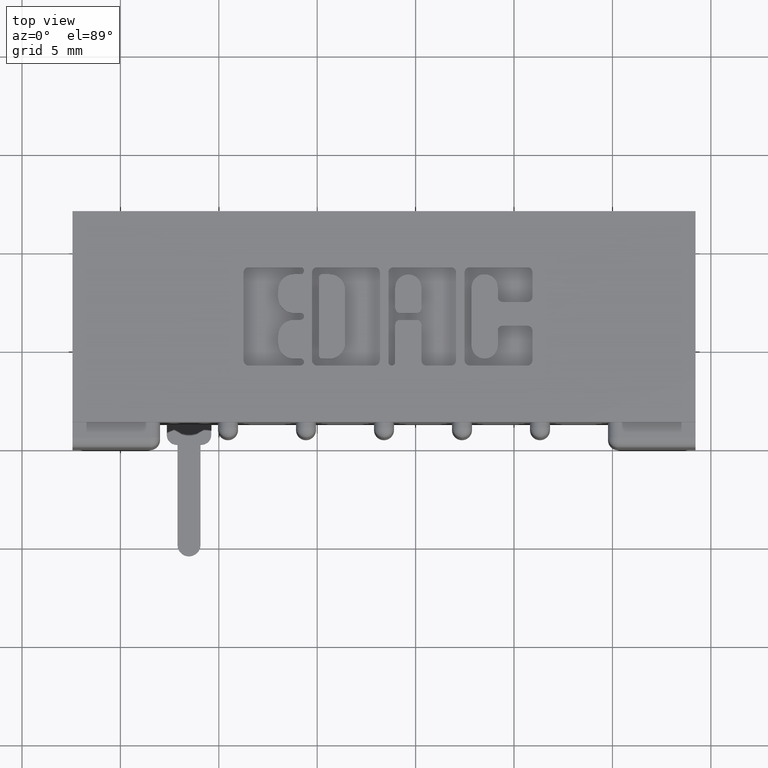
[diagram: clean part render]
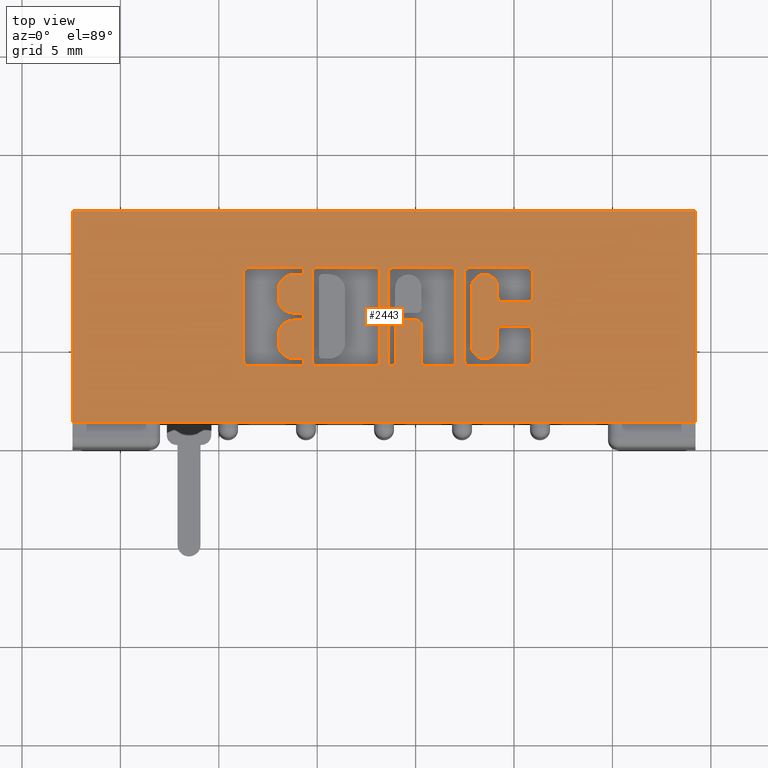
[diagram: same view with one face highlighted and labeled with its STEP entity id]
A machine part, top view. The second image highlights one B-rep face of the part: STEP entity #2443.
In plain terms, the highlighted planar face has unit normal (0, 0, -1).
Its self-contained STEP definition (entity closure, byte-faithful):
#38 = VECTOR ( 'NONE', #5203, 39.37007874015748100 ) ;
#40 = ORIENTED_EDGE ( 'NONE', *, *, #5771, .F. ) ;
#48 = LINE ( 'NONE', #5258, #38 ) ;
#55 = CIRCLE ( 'NONE', #6924, 0.009815670203803203800 ) ;
#60 = ORIENTED_EDGE ( 'NONE', *, *, #5436, .F. ) ;
#67 = CARTESIAN_POINT ( 'NONE',  ( 0.7406370600051098700, 0.1775852362473085400, 0.0000000000000000000 ) ) ;
#75 = VECTOR ( 'NONE', #808, 39.37007874015748100 ) ;
#86 = EDGE_LOOP ( 'NONE', ( #807, #748, #302, #671, #717, #8188, #40, #60 ) ) ;
#89 = VECTOR ( 'NONE', #2496, 39.37007874015748100 ) ;
#94 = ORIENTED_EDGE ( 'NONE', *, *, #1226, .T. ) ;
#98 = LINE ( 'NONE', #2585, #75 ) ;
#109 = ORIENTED_EDGE ( 'NONE', *, *, #1317, .F. ) ;
#112 = ORIENTED_EDGE ( 'NONE', *, *, #6377, .T. ) ;
#116 = LINE ( 'NONE', #8558, #89 ) ;
#118 = DIRECTION ( 'NONE',  ( 1.000000000000000000, 0.0000000000000000000, 0.0000000000000000000 ) ) ;
#125 = CIRCLE ( 'NONE', #6938, 0.009815670203806891800 ) ;
#128 = EDGE_CURVE ( 'NONE', #4295, #4230, #1099, .T. ) ;
#132 = VECTOR ( 'NONE', #4491, 39.37007874015748100 ) ;
#134 = EDGE_LOOP ( 'NONE', ( #7919, #7979, #7933, #7985, #8068, #8058, #8090, #8302, #8335, #8123, #8128, #8307, #8179, #8246, #8243, #8267, #8375, #8436, #8392, #8668 ) ) ;
#144 = LINE ( 'NONE', #4650, #132 ) ;
#177 = VECTOR ( 'NONE', #8945, 39.37007874015748100 ) ;
#188 = CIRCLE ( 'NONE', #6937, 0.006870969142657995000 ) ;
#193 = LINE ( 'NONE', #8974, #177 ) ;
#196 = ORIENTED_EDGE ( 'NONE', *, *, #1245, .F. ) ;
#200 = VERTEX_POINT ( 'NONE', #1049 ) ;
#210 = CIRCLE ( 'NONE', #6595, 0.006870969142663458500 ) ;
#218 = EDGE_CURVE ( 'NONE', #1334, #5589, #224, .T. ) ;
#224 = CIRCLE ( 'NONE', #8408, 0.03141014465221592800 ) ;
#230 = EDGE_CURVE ( 'NONE', #6429, #4139, #98, .T. ) ;
#254 = ORIENTED_EDGE ( 'NONE', *, *, #5502, .F. ) ;
#257 = ORIENTED_EDGE ( 'NONE', *, *, #1299, .T. ) ;
#263 = VERTEX_POINT ( 'NONE', #7579 ) ;
#267 = VERTEX_POINT ( 'NONE', #9097 ) ;
#292 = ORIENTED_EDGE ( 'NONE', *, *, #5563, .T. ) ;
#302 = ORIENTED_EDGE ( 'NONE', *, *, #5166, .F. ) ;
#315 = EDGE_CURVE ( 'NONE', #5075, #2947, #2889, .T. ) ;
#319 = CARTESIAN_POINT ( 'NONE',  ( 0.7541336065353102500, 0.2620000000000202700, 0.0000000000000000000 ) ) ;
#321 = ORIENTED_EDGE ( 'NONE', *, *, #5548, .T. ) ;
#345 = EDGE_CURVE ( 'NONE', #4890, #3096, #1686, .T. ) ;
#364 = VECTOR ( 'NONE', #4811, 39.37007874015748100 ) ;
#386 = ORIENTED_EDGE ( 'NONE', *, *, #5594, .T. ) ;
#392 = VECTOR ( 'NONE', #6287, 39.37007874015748100 ) ;
#405 = LINE ( 'NONE', #5845, #364 ) ;
#410 = ORIENTED_EDGE ( 'NONE', *, *, #5211, .T. ) ;
#430 = ORIENTED_EDGE ( 'NONE', *, *, #5178, .F. ) ;
#436 = EDGE_CURVE ( 'NONE', #754, #4784, #1018, .T. ) ;
#452 = ORIENTED_EDGE ( 'NONE', *, *, #5198, .T. ) ;
#460 = VERTEX_POINT ( 'NONE', #8485 ) ;
#472 = LINE ( 'NONE', #6136, #392 ) ;
#500 = LINE ( 'NONE', #8812, #519 ) ;
#502 = EDGE_CURVE ( 'NONE', #4230, #851, #939, .T. ) ;
#516 = ORIENTED_EDGE ( 'NONE', *, *, #4866, .T. ) ;
#519 = VECTOR ( 'NONE', #8828, 39.37007874015748100 ) ;
#527 = ORIENTED_EDGE ( 'NONE', *, *, #1109, .F. ) ;
#529 = VECTOR ( 'NONE', #5625, 39.37007874015748100 ) ;
#534 = DIRECTION ( 'NONE',  ( -0.0000000000000000000, 1.000000000000000000, -0.0000000000000000000 ) ) ;
#542 = VERTEX_POINT ( 'NONE', #2942 ) ;
#618 = DIRECTION ( 'NONE',  ( -0.0000000000000000000, 0.0000000000000000000, 1.000000000000000000 ) ) ;
#631 = VECTOR ( 'NONE', #534, 39.37007874015748100 ) ;
#638 = CIRCLE ( 'NONE', #6951, 0.009815670203841039800 ) ;
#643 = ORIENTED_EDGE ( 'NONE', *, *, #4531, .T. ) ;
#671 = ORIENTED_EDGE ( 'NONE', *, *, #502, .F. ) ;
#674 = CIRCLE ( 'NONE', #6954, 0.009815670203822599700 ) ;
#682 = LINE ( 'NONE', #8286, #631 ) ;
#699 = VERTEX_POINT ( 'NONE', #7765 ) ;
#717 = ORIENTED_EDGE ( 'NONE', *, *, #128, .F. ) ;
#745 = LINE ( 'NONE', #6282, #767 ) ;
#748 = ORIENTED_EDGE ( 'NONE', *, *, #4816, .F. ) ;
#754 = VERTEX_POINT ( 'NONE', #5941 ) ;
#765 = CARTESIAN_POINT ( 'NONE',  ( 1.148478156973166100, 0.3007718973050451700, 0.0000000000000000000 ) ) ;
#767 = VECTOR ( 'NONE', #6696, 39.37007874015748100 ) ;
#784 = VECTOR ( 'NONE', #5910, 39.37007874015748100 ) ;
#802 = ORIENTED_EDGE ( 'NONE', *, *, #5135, .T. ) ;
#807 = ORIENTED_EDGE ( 'NONE', *, *, #4777, .F. ) ;
#808 = DIRECTION ( 'NONE',  ( 0.0000000000000000000, 1.000000000000000000, -0.0000000000000000000 ) ) ;
#812 = CIRCLE ( 'NONE', #6978, 0.009815670203805798900 ) ;
#817 = ORIENTED_EDGE ( 'NONE', *, *, #5155, .F. ) ;
#831 = ORIENTED_EDGE ( 'NONE', *, *, #4776, .F. ) ;
#851 = VERTEX_POINT ( 'NONE', #8990 ) ;
#852 = ORIENTED_EDGE ( 'NONE', *, *, #4679, .F. ) ;
#861 = ORIENTED_EDGE ( 'NONE', *, *, #1168, .F. ) ;
#883 = LINE ( 'NONE', #5977, #784 ) ;
#885 = VECTOR ( 'NONE', #5010, 39.37007874015748100 ) ;
#894 = LINE ( 'NONE', #7299, #885 ) ;
#897 = ORIENTED_EDGE ( 'NONE', *, *, #4576, .F. ) ;
#904 = ORIENTED_EDGE ( 'NONE', *, *, #4634, .F. ) ;
#910 = CARTESIAN_POINT ( 'NONE',  ( 0.7406370600050843400, 0.2237188862052004700, 0.0000000000000000000 ) ) ;
#918 = CIRCLE ( 'NONE', #6980, 0.006870969142662229500 ) ;
#939 = LINE ( 'NONE', #6470, #529 ) ;
#953 = VECTOR ( 'NONE', #5873, 39.37007874015748100 ) ;
#966 = CIRCLE ( 'NONE', #6992, 0.03141014465218178200 ) ;
#971 = CARTESIAN_POINT ( 'NONE',  ( 0.7092269153529097100, 0.0000000000000000000, 0.0000000000000000000 ) ) ;
#974 = LINE ( 'NONE', #4792, #953 ) ;
#979 = ORIENTED_EDGE ( 'NONE', *, *, #4852, .F. ) ;
#992 = ORIENTED_EDGE ( 'NONE', *, *, #4760, .F. ) ;
#993 = CARTESIAN_POINT ( 'NONE',  ( 0.7092269153529097100, 0.3002811137948582800, 0.0000000000000000000 ) ) ;
#999 = ORIENTED_EDGE ( 'NONE', *, *, #7491, .F. ) ;
#1002 = CARTESIAN_POINT ( 'NONE',  ( 0.7541336065353515500, 0.3601567020380326800, 0.0000000000000000000 ) ) ;
#1003 = EDGE_CURVE ( 'NONE', #7845, #3047, #3624, .T. ) ;
#1014 = ORIENTED_EDGE ( 'NONE', *, *, #5304, .F. ) ;
#1018 = LINE ( 'NONE', #8515, #1069 ) ;
#1048 = ORIENTED_EDGE ( 'NONE', *, *, #4540, .F. ) ;
#1049 = CARTESIAN_POINT ( 'NONE',  ( 0.9124112885716693100, 0.3503410318342100000, 0.0000000000000000000 ) ) ;
#1054 = LINE ( 'NONE', #6115, #8670 ) ;
#1069 = VECTOR ( 'NONE', #8443, 39.37007874015748100 ) ;
#1099 = CIRCLE ( 'NONE', #8451, 0.009815670203806754800 ) ;
#1105 = ORIENTED_EDGE ( 'NONE', *, *, #8032, .F. ) ;
#1109 = EDGE_CURVE ( 'NONE', #3758, #1208, #8739, .T. ) ;
#1112 = CARTESIAN_POINT ( 'NONE',  ( 0.7406370600051257500, 0.3150046191005197400, 0.0000000000000000000 ) ) ;
#1128 = EDGE_CURVE ( 'NONE', #7845, #3979, #1054, .T. ) ;
#1130 = EDGE_CURVE ( 'NONE', #3115, #4295, #8682, .T. ) ;
#1147 = CARTESIAN_POINT ( 'NONE',  ( 0.7610045756779737500, 0.2620000000000202700, 0.0000000000000000000 ) ) ;
#1154 = CARTESIAN_POINT ( 'NONE',  ( 0.9958444853039849500, 0.1736589681657878000, 0.0000000000000000000 ) ) ;
#1167 = CARTESIAN_POINT ( 'NONE',  ( 0.7610045756779980600, 0.1707142671046479000, 0.0000000000000000000 ) ) ;
#1168 = EDGE_CURVE ( 'NONE', #8438, #263, #8607, .T. ) ;
#1185 = EDGE_CURVE ( 'NONE', #3096, #3047, #8564, .T. ) ;
#1199 = DIRECTION ( 'NONE',  ( 1.000000000000000000, 0.0000000000000000000, 0.0000000000000000000 ) ) ;
#1208 = VERTEX_POINT ( 'NONE', #3523 ) ;
#1226 = EDGE_CURVE ( 'NONE', #6265, #6999, #8455, .T. ) ;
#1236 = CARTESIAN_POINT ( 'NONE',  ( 0.6400264404161156700, 0.1736589681657899100, 0.0000000000000000000 ) ) ;
#1245 = EDGE_CURVE ( 'NONE', #6265, #3647, #8371, .T. ) ;
#1281 = CARTESIAN_POINT ( 'NONE',  ( 0.7541336065353515500, 0.3532857328953861700, 0.0000000000000000000 ) ) ;
#1288 = DIRECTION ( 'NONE',  ( 0.0000000000000000000, -1.000000000000000000, 0.0000000000000000000 ) ) ;
#1291 = VERTEX_POINT ( 'NONE', #2808 ) ;
#1299 = EDGE_CURVE ( 'NONE', #8426, #267, #8430, .T. ) ;
#1309 = DIRECTION ( 'NONE',  ( 1.000000000000000000, 0.0000000000000000000, 0.0000000000000000000 ) ) ;
#1317 = EDGE_CURVE ( 'NONE', #8426, #6999, #8409, .T. ) ;
#1332 = DIRECTION ( 'NONE',  ( -0.0000000000000000000, 0.0000000000000000000, 1.000000000000000000 ) ) ;
#1334 = VERTEX_POINT ( 'NONE', #3092 ) ;
#1346 = DIRECTION ( 'NONE',  ( -0.0000000000000000000, 0.0000000000000000000, 1.000000000000000000 ) ) ;
#1376 = CARTESIAN_POINT ( 'NONE',  ( 0.9860288151001884700, 0.2551290308573497300, 0.0000000000000000000 ) ) ;
#1429 = EDGE_CURVE ( 'NONE', #2947, #3399, #8232, .T. ) ;
#1432 = CARTESIAN_POINT ( 'NONE',  ( 0.7541336065353102500, 0.2688709691426837700, 0.0000000000000000000 ) ) ;
#1455 = CARTESIAN_POINT ( 'NONE',  ( 0.7867707099630104600, 0.3601567020380510000, 0.0000000000000000000 ) ) ;
#1515 = CIRCLE ( 'NONE', #6606, 0.009815670203840902800 ) ;
#1517 = VERTEX_POINT ( 'NONE', #2994 ) ;
#1542 = ORIENTED_EDGE ( 'NONE', *, *, #8373, .F. ) ;
#1549 = VERTEX_POINT ( 'NONE', #4907 ) ;
#1562 = DIRECTION ( 'NONE',  ( 1.000000000000000000, 0.0000000000000000000, 0.0000000000000000000 ) ) ;
#1565 = DIRECTION ( 'NONE',  ( -0.0000000000000000000, 0.0000000000000000000, 1.000000000000000000 ) ) ;
#1625 = DIRECTION ( 'NONE',  ( -0.0000000000000000000, 0.0000000000000000000, 1.000000000000000000 ) ) ;
#1642 = CARTESIAN_POINT ( 'NONE',  ( 1.148478156973179200, 0.2038421540424529300, 0.0000000000000000000 ) ) ;
#1686 = CIRCLE ( 'NONE', #8396, 0.009815670203788042300 ) ;
#1710 = DIRECTION ( 'NONE',  ( 1.000000000000000000, 0.0000000000000000000, 0.0000000000000000000 ) ) ;
#1718 = DIRECTION ( 'NONE',  ( -1.000000000000000000, -3.427012734660361200E-014, 0.0000000000000000000 ) ) ;
#1768 = DIRECTION ( 'NONE',  ( 0.0000000000000000000, 1.000000000000000000, -0.0000000000000000000 ) ) ;
#1797 = CARTESIAN_POINT ( 'NONE',  ( 1.148478156973179200, 0.2335345564089686100, 0.0000000000000000000 ) ) ;
#1801 = DIRECTION ( 'NONE',  ( 1.000000000000000000, 0.0000000000000000000, 0.0000000000000000000 ) ) ;
#1816 = DIRECTION ( 'NONE',  ( -0.0000000000000000000, 0.0000000000000000000, 1.000000000000000000 ) ) ;
#1832 = CARTESIAN_POINT ( 'NONE',  ( 0.7541336064153890700, 0.2551290308573567800, 0.0000000000000000000 ) ) ;
#1835 = CARTESIAN_POINT ( 'NONE',  ( 1.055229290037011900, 0.3503410318342102800, 0.0000000000000000000 ) ) ;
#1872 = DIRECTION ( 'NONE',  ( 0.0000000000000000000, -1.000000000000000000, 0.0000000000000000000 ) ) ;
#1911 = DIRECTION ( 'NONE',  ( 1.000000000000000000, 0.0000000000000000000, 0.0000000000000000000 ) ) ;
#1936 = CIRCLE ( 'NONE', #6875, 0.009815670203840902800 ) ;
#1956 = VECTOR ( 'NONE', #8182, 39.37007874015748100 ) ;
#1994 = LINE ( 'NONE', #8189, #1956 ) ;
#2031 = VERTEX_POINT ( 'NONE', #2342 ) ;
#2083 = DIRECTION ( 'NONE',  ( -0.0000000000000000000, 0.0000000000000000000, 1.000000000000000000 ) ) ;
#2084 = DIRECTION ( 'NONE',  ( -0.0000000000000000000, 0.0000000000000000000, 1.000000000000000000 ) ) ;
#2154 = VECTOR ( 'NONE', #6464, 39.37007874015748100 ) ;
#2169 = VERTEX_POINT ( 'NONE', #6633 ) ;
#2171 = CARTESIAN_POINT ( 'NONE',  ( 0.9364596805709872700, 0.1707142671046479000, 0.0000000000000000000 ) ) ;
#2172 = DIRECTION ( 'NONE',  ( 1.000000000000000000, 0.0000000000000000000, 0.0000000000000000000 ) ) ;
#2176 = VECTOR ( 'NONE', #7712, 39.37007874015748100 ) ;
#2184 = LINE ( 'NONE', #7628, #2176 ) ;
#2195 = CARTESIAN_POINT ( 'NONE',  ( 1.055229290037010800, 0.1736589681657807500, 0.0000000000000000000 ) ) ;
#2196 = CARTESIAN_POINT ( 'NONE',  ( 1.207862961706132300, 0.3503410318342108900, 0.0000000000000000000 ) ) ;
#2212 = CIRCLE ( 'NONE', #6613, 0.009815670203806754800 ) ;
#2249 = LINE ( 'NONE', #5831, #2154 ) ;
#2342 = CARTESIAN_POINT ( 'NONE',  ( 1.207862961706168700, 0.3601567020380510000, 0.0000000000000000000 ) ) ;
#2390 = VECTOR ( 'NONE', #9065, 39.37007874015748100 ) ;
#2420 = CARTESIAN_POINT ( 'NONE',  ( 1.158293827176977600, 0.3007718973050451700, 0.0000000000000000000 ) ) ;
#2443 = ADVANCED_FACE ( 'NONE', ( #5150, #4834, #4827, #5026, #4929 ), #8325, .F. ) ;
#2445 = EDGE_CURVE ( 'NONE', #3399, #4272, #1994, .T. ) ;
#2451 = VECTOR ( 'NONE', #5161, 39.37007874015748100 ) ;
#2483 = CARTESIAN_POINT ( 'NONE',  ( 1.005660155507788200, 0.1736589681657878000, 0.0000000000000000000 ) ) ;
#2487 = CARTESIAN_POINT ( 'NONE',  ( 1.092038053301299700, 0.3503410318342100000, 0.0000000000000000000 ) ) ;
#2496 = DIRECTION ( 'NONE',  ( 0.0000000000000000000, -1.000000000000000000, 0.0000000000000000000 ) ) ;
#2505 = DIRECTION ( 'NONE',  ( -0.0000000000000000000, 0.0000000000000000000, 1.000000000000000000 ) ) ;
#2562 = CIRCLE ( 'NONE', #6891, 0.009815670203796920600 ) ;
#2573 = CARTESIAN_POINT ( 'NONE',  ( 0.7769550397591695700, 0.1736589681657899100, 0.0000000000000000000 ) ) ;
#2585 = CARTESIAN_POINT ( 'NONE',  ( 1.217678631909972400, 0.0000000000000000000, 0.0000000000000000000 ) ) ;
#2591 = VECTOR ( 'NONE', #1718, 39.37007874015748100 ) ;
#2599 = DIRECTION ( 'NONE',  ( -0.0000000000000000000, 0.0000000000000000000, 1.000000000000000000 ) ) ;
#2620 = DIRECTION ( 'NONE',  ( 1.000000000000000000, 0.0000000000000000000, 0.0000000000000000000 ) ) ;
#2646 = AXIS2_PLACEMENT_3D ( 'NONE', #8303, #8272, #8234 ) ;
#2652 = LINE ( 'NONE', #5212, #2451 ) ;
#2660 = CARTESIAN_POINT ( 'NONE',  ( 1.217678631909940400, 0.2335345564089703600, 0.0000000000000000000 ) ) ;
#2663 = CIRCLE ( 'NONE', #6617, 0.02625691779517367100 ) ;
#2703 = VECTOR ( 'NONE', #4987, 39.37007874015748100 ) ;
#2730 = CARTESIAN_POINT ( 'NONE',  ( 0.7867707099629762700, 0.1736589681657899100, 0.0000000000000000000 ) ) ;
#2736 = CIRCLE ( 'NONE', #6630, 0.009815670203806345400 ) ;
#2750 = LINE ( 'NONE', #8382, #2591 ) ;
#2803 = LINE ( 'NONE', #4444, #2703 ) ;
#2808 = CARTESIAN_POINT ( 'NONE',  ( 1.544000000000000700, 0.4729999999999999800, 0.0000000000000000000 ) ) ;
#2820 = DIRECTION ( 'NONE',  ( -1.000000000000000000, 0.0000000000000000000, 0.0000000000000000000 ) ) ;
#2838 = VERTEX_POINT ( 'NONE', #5510 ) ;
#2856 = DIRECTION ( 'NONE',  ( 1.000000000000000000, 0.0000000000000000000, 0.0000000000000000000 ) ) ;
#2889 = LINE ( 'NONE', #7253, #2390 ) ;
#2921 = VECTOR ( 'NONE', #8882, 39.37007874015748100 ) ;
#2924 = CARTESIAN_POINT ( 'NONE',  ( 1.217678631909972400, 0.3503410318341947400, 0.0000000000000000000 ) ) ;
#2942 = CARTESIAN_POINT ( 'NONE',  ( 1.207862961706134500, 0.1638432979619831300, 0.0000000000000000000 ) ) ;
#2943 = VERTEX_POINT ( 'NONE', #1002 ) ;
#2946 = VERTEX_POINT ( 'NONE', #993 ) ;
#2947 = VERTEX_POINT ( 'NONE', #765 ) ;
#2970 = DIRECTION ( 'NONE',  ( 1.000000000000000000, 0.0000000000000000000, 0.0000000000000000000 ) ) ;
#2981 = CIRCLE ( 'NONE', #6638, 0.009815670203787086500 ) ;
#2994 = CARTESIAN_POINT ( 'NONE',  ( 0.9433306497136472200, 0.2453133606535455300, 0.0000000000000000000 ) ) ;
#2997 = CARTESIAN_POINT ( 'NONE',  ( 0.0000000000000000000, 0.1638432979619845200, 0.0000000000000000000 ) ) ;
#3032 = LINE ( 'NONE', #8219, #2921 ) ;
#3047 = VERTEX_POINT ( 'NONE', #1642 ) ;
#3092 = CARTESIAN_POINT ( 'NONE',  ( 0.7406370600051257500, 0.3464147637527356100, 0.0000000000000000000 ) ) ;
#3096 = VERTEX_POINT ( 'NONE', #1797 ) ;
#3109 = VERTEX_POINT ( 'NONE', #1832 ) ;
#3115 = VERTEX_POINT ( 'NONE', #5811 ) ;
#3194 = DIRECTION ( 'NONE',  ( 1.000000000000000000, 0.0000000000000000000, 0.0000000000000000000 ) ) ;
#3259 = DIRECTION ( 'NONE',  ( 1.000000000000000000, 0.0000000000000000000, 0.0000000000000000000 ) ) ;
#3297 = CARTESIAN_POINT ( 'NONE',  ( 1.065044960240807000, 0.3503410318342009600, 0.0000000000000000000 ) ) ;
#3399 = VERTEX_POINT ( 'NONE', #8861 ) ;
#3479 = DIRECTION ( 'NONE',  ( -0.0000000000000000000, 0.0000000000000000000, 1.000000000000000000 ) ) ;
#3482 = CARTESIAN_POINT ( 'NONE',  ( 0.7541336065353357900, 0.1707142671046479000, 0.0000000000000000000 ) ) ;
#3522 = DIRECTION ( 'NONE',  ( 1.000000000000000000, 0.0000000000000000000, 0.0000000000000000000 ) ) ;
#3523 = CARTESIAN_POINT ( 'NONE',  ( 0.9295887114283312200, 0.3503410318342100000, 0.0000000000000000000 ) ) ;
#3573 = VERTEX_POINT ( 'NONE', #6202 ) ;
#3585 = EDGE_LOOP ( 'NONE', ( #112, #196, #94, #109, #257, #254, #292, #386, #321, #410, #452, #430, #516, #527 ) ) ;
#3624 = CIRCLE ( 'NONE', #8545, 0.02625691779518022500 ) ;
#3647 = VERTEX_POINT ( 'NONE', #8666 ) ;
#3651 = EDGE_CURVE ( 'NONE', #4272, #6429, #4177, .T. ) ;
#3681 = CARTESIAN_POINT ( 'NONE',  ( 0.7406370600050843400, 0.2551290308573567800, 0.0000000000000000000 ) ) ;
#3744 = CARTESIAN_POINT ( 'NONE',  ( 1.148478156973179200, 0.0000000000000000000, 0.0000000000000000000 ) ) ;
#3758 = VERTEX_POINT ( 'NONE', #9104 ) ;
#3788 = DIRECTION ( 'NONE',  ( 0.0000000000000000000, 1.000000000000000000, -0.0000000000000000000 ) ) ;
#3865 = VERTEX_POINT ( 'NONE', #6255 ) ;
#3929 = VERTEX_POINT ( 'NONE', #8180 ) ;
#3966 = VERTEX_POINT ( 'NONE', #1455 ) ;
#3979 = VERTEX_POINT ( 'NONE', #7600 ) ;
#3990 = VERTEX_POINT ( 'NONE', #67 ) ;
#3992 = VECTOR ( 'NONE', #7998, 39.37007874015748100 ) ;
#4024 = CARTESIAN_POINT ( 'NONE',  ( 1.092038053301265700, 0.1736589681657899100, 0.0000000000000000000 ) ) ;
#4043 = DIRECTION ( 'NONE',  ( 1.000000000000000000, 0.0000000000000000000, 0.0000000000000000000 ) ) ;
#4058 = CIRCLE ( 'NONE', #6893, 0.009815670203803340800 ) ;
#4063 = DIRECTION ( 'NONE',  ( -0.0000000000000000000, 0.0000000000000000000, 1.000000000000000000 ) ) ;
#4130 = VERTEX_POINT ( 'NONE', #1154 ) ;
#4137 = VERTEX_POINT ( 'NONE', #5343 ) ;
#4139 = VERTEX_POINT ( 'NONE', #2924 ) ;
#4165 = CARTESIAN_POINT ( 'NONE',  ( 1.217678631909940400, 0.1736589681657829100, 0.0000000000000000000 ) ) ;
#4177 = CIRCLE ( 'NONE', #7530, 0.009815670203804980100 ) ;
#4230 = VERTEX_POINT ( 'NONE', #7523 ) ;
#4272 = VERTEX_POINT ( 'NONE', #8072 ) ;
#4287 = DIRECTION ( 'NONE',  ( 1.000000000000000000, 0.0000000000000000000, 0.0000000000000000000 ) ) ;
#4295 = VERTEX_POINT ( 'NONE', #2573 ) ;
#4302 = VERTEX_POINT ( 'NONE', #1432 ) ;
#4309 = ORIENTED_EDGE ( 'NONE', *, *, #7546, .F. ) ;
#4329 = CARTESIAN_POINT ( 'NONE',  ( 0.9025956183678963700, 0.3601567020380510000, 0.0000000000000000000 ) ) ;
#4336 = VERTEX_POINT ( 'NONE', #1376 ) ;
#4359 = VERTEX_POINT ( 'NONE', #5017 ) ;
#4394 = VERTEX_POINT ( 'NONE', #7571 ) ;
#4415 = CARTESIAN_POINT ( 'NONE',  ( -0.0000000000000000000, 0.3601567020380065400, 0.0000000000000000000 ) ) ;
#4444 = CARTESIAN_POINT ( 'NONE',  ( 1.217678631909940400, 0.0000000000000000000, 0.0000000000000000000 ) ) ;
#4448 = AXIS2_PLACEMENT_3D ( 'NONE', #1281, #1332, #1309 ) ;
#4464 = CARTESIAN_POINT ( 'NONE',  ( 1.544000000000000700, 0.05099999999999999700, 9.114728637344011900E-024 ) ) ;
#4472 = VERTEX_POINT ( 'NONE', #4830 ) ;
#4475 = DIRECTION ( 'NONE',  ( -0.0000000000000000000, 0.0000000000000000000, 1.000000000000000000 ) ) ;
#4482 = LINE ( 'NONE', #5000, #3992 ) ;
#4491 = DIRECTION ( 'NONE',  ( 1.000000000000000000, 0.0000000000000000000, 0.0000000000000000000 ) ) ;
#4531 = EDGE_CURVE ( 'NONE', #4985, #3990, #966, .T. ) ;
#4540 = EDGE_CURVE ( 'NONE', #4359, #3990, #974, .T. ) ;
#4553 = CARTESIAN_POINT ( 'NONE',  ( 1.207862961706134500, 0.1736589681657899100, 0.0000000000000000000 ) ) ;
#4569 = EDGE_CURVE ( 'NONE', #6775, #6559, #918, .T. ) ;
#4576 = EDGE_CURVE ( 'NONE', #1334, #8438, #894, .T. ) ;
#4588 = CARTESIAN_POINT ( 'NONE',  ( 1.065044960240807000, 0.1736589681657807500, 0.0000000000000000000 ) ) ;
#4594 = DIRECTION ( 'NONE',  ( 1.000000000000000000, 0.0000000000000000000, 0.0000000000000000000 ) ) ;
#4607 = CARTESIAN_POINT ( 'NONE',  ( 0.9394043816321276900, 0.3503410318342100000, 0.0000000000000000000 ) ) ;
#4617 = DIRECTION ( 'NONE',  ( 1.000000000000000000, 0.0000000000000000000, 0.0000000000000000000 ) ) ;
#4633 = EDGE_CURVE ( 'NONE', #3573, #6775, #883, .T. ) ;
#4634 = EDGE_CURVE ( 'NONE', #7613, #3573, #812, .T. ) ;
#4650 = CARTESIAN_POINT ( 'NONE',  ( 0.0000000000000000000, 0.4729999999999999800, 0.0000000000000000000 ) ) ;
#4657 = VERTEX_POINT ( 'NONE', #7877 ) ;
#4670 = VECTOR ( 'NONE', #6906, 39.37007874015748100 ) ;
#4672 = DIRECTION ( 'NONE',  ( 1.000000000000000000, 0.0000000000000000000, 0.0000000000000000000 ) ) ;
#4679 = EDGE_CURVE ( 'NONE', #9031, #3929, #745, .T. ) ;
#4705 = VERTEX_POINT ( 'NONE', #6310 ) ;
#4707 = DIRECTION ( 'NONE',  ( -0.0000000000000000000, 0.0000000000000000000, 1.000000000000000000 ) ) ;
#4709 = CARTESIAN_POINT ( 'NONE',  ( 0.9531463199174504700, 0.2453133606535455300, 0.0000000000000000000 ) ) ;
#4712 = CARTESIAN_POINT ( 'NONE',  ( 1.055229290037010800, 0.1638432979619845200, 0.0000000000000000000 ) ) ;
#4717 = CARTESIAN_POINT ( 'NONE',  ( 0.7092269153529280300, 0.2089953808994903200, 0.0000000000000000000 ) ) ;
#4740 = VERTEX_POINT ( 'NONE', #6539 ) ;
#4749 = DIRECTION ( 'NONE',  ( 1.000000000000000000, 0.0000000000000000000, 0.0000000000000000000 ) ) ;
#4760 = EDGE_CURVE ( 'NONE', #699, #4705, #674, .T. ) ;
#4776 = EDGE_CURVE ( 'NONE', #3929, #4657, #682, .T. ) ;
#4777 = EDGE_CURVE ( 'NONE', #200, #5268, #638, .T. ) ;
#4784 = VERTEX_POINT ( 'NONE', #5897 ) ;
#4789 = CARTESIAN_POINT ( 'NONE',  ( 1.158293827176967400, 0.2433502266127574900, 0.0000000000000000000 ) ) ;
#4792 = CARTESIAN_POINT ( 'NONE',  ( -2.111779678676719100E-014, 0.1775852362472204700, 0.0000000000000000000 ) ) ;
#4811 = DIRECTION ( 'NONE',  ( 0.0000000000000000000, 1.000000000000000000, -0.0000000000000000000 ) ) ;
#4816 = EDGE_CURVE ( 'NONE', #4472, #200, #500, .T. ) ;
#4827 = FACE_OUTER_BOUND ( 'NONE', #5817, .T. ) ;
#4830 = CARTESIAN_POINT ( 'NONE',  ( 0.9124112885716693100, 0.1736589681657899100, 0.0000000000000000000 ) ) ;
#4834 = FACE_BOUND ( 'NONE', #4966, .T. ) ;
#4852 = EDGE_CURVE ( 'NONE', #2943, #699, #472, .T. ) ;
#4866 = EDGE_CURVE ( 'NONE', #2169, #1208, #405, .T. ) ;
#4890 = VERTEX_POINT ( 'NONE', #4789 ) ;
#4907 = CARTESIAN_POINT ( 'NONE',  ( 0.9433306497136472200, 0.1707142671046479000, 0.0000000000000000000 ) ) ;
#4929 = FACE_BOUND ( 'NONE', #3585, .T. ) ;
#4966 = EDGE_LOOP ( 'NONE', ( #8995, #1542, #8697, #8767, #8891, #9026, #8975, #8385, #1105, #643, #1048, #4309, #8315, #8942, #904, #1014, #992, #979, #999, #861, #897 ) ) ;
#4985 = VERTEX_POINT ( 'NONE', #4717 ) ;
#4987 = DIRECTION ( 'NONE',  ( 0.0000000000000000000, 1.000000000000000000, -0.0000000000000000000 ) ) ;
#5000 = CARTESIAN_POINT ( 'NONE',  ( 0.0000000000000000000, 0.2688709691426837700, 0.0000000000000000000 ) ) ;
#5010 = DIRECTION ( 'NONE',  ( 1.000000000000000000, 0.0000000000000000000, 0.0000000000000000000 ) ) ;
#5017 = CARTESIAN_POINT ( 'NONE',  ( 0.7541336064154146000, 0.1775852362473101500, 0.0000000000000000000 ) ) ;
#5023 = VECTOR ( 'NONE', #1801, 39.37007874015748100 ) ;
#5026 = FACE_BOUND ( 'NONE', #86, .T. ) ;
#5030 = LINE ( 'NONE', #7285, #5023 ) ;
#5040 = CARTESIAN_POINT ( 'NONE',  ( 0.7092269153529097100, 0.3150046191005197400, 0.0000000000000000000 ) ) ;
#5051 = CARTESIAN_POINT ( 'NONE',  ( 0.0000000000000000000, 0.3601567020380510000, 0.0000000000000000000 ) ) ;
#5056 = CARTESIAN_POINT ( 'NONE',  ( 0.7541336065353102500, 0.2620000000000202700, 0.0000000000000000000 ) ) ;
#5067 = DIRECTION ( 'NONE',  ( 1.000000000000000000, 0.0000000000000000000, 0.0000000000000000000 ) ) ;
#5075 = VERTEX_POINT ( 'NONE', #7617 ) ;
#5085 = DIRECTION ( 'NONE',  ( -0.0000000000000000000, 0.0000000000000000000, 1.000000000000000000 ) ) ;
#5113 = DIRECTION ( 'NONE',  ( 1.000000000000000000, 0.0000000000000000000, 0.0000000000000000000 ) ) ;
#5135 = EDGE_CURVE ( 'NONE', #9031, #1291, #193, .T. ) ;
#5136 = CARTESIAN_POINT ( 'NONE',  ( 0.7541336065353357900, 0.1707142671046479000, 0.0000000000000000000 ) ) ;
#5141 = VECTOR ( 'NONE', #1768, 39.37007874015748100 ) ;
#5148 = LINE ( 'NONE', #971, #5141 ) ;
#5150 = FACE_BOUND ( 'NONE', #134, .T. ) ;
#5155 = EDGE_CURVE ( 'NONE', #4657, #1291, #144, .T. ) ;
#5161 = DIRECTION ( 'NONE',  ( 0.0000000000000000000, 1.000000000000000000, -0.0000000000000000000 ) ) ;
#5166 = EDGE_CURVE ( 'NONE', #851, #4472, #125, .T. ) ;
#5178 = EDGE_CURVE ( 'NONE', #2169, #1549, #188, .T. ) ;
#5198 = EDGE_CURVE ( 'NONE', #1517, #1549, #116, .T. ) ;
#5203 = DIRECTION ( 'NONE',  ( 0.0000000000000000000, -1.000000000000000000, 0.0000000000000000000 ) ) ;
#5207 = LINE ( 'NONE', #5051, #4670 ) ;
#5211 = EDGE_CURVE ( 'NONE', #4137, #1517, #55, .T. ) ;
#5212 = CARTESIAN_POINT ( 'NONE',  ( 0.9958444853039849500, 0.0000000000000000000, 0.0000000000000000000 ) ) ;
#5258 = CARTESIAN_POINT ( 'NONE',  ( 0.6400264404161156700, 0.0000000000000000000, 0.0000000000000000000 ) ) ;
#5268 = VERTEX_POINT ( 'NONE', #4329 ) ;
#5288 = DIRECTION ( 'NONE',  ( 0.0000000000000000000, -1.000000000000000000, 0.0000000000000000000 ) ) ;
#5295 = DIRECTION ( 'NONE',  ( -0.0000000000000000000, 0.0000000000000000000, 1.000000000000000000 ) ) ;
#5297 = CARTESIAN_POINT ( 'NONE',  ( 0.9860288151001880300, 0.2453133606535527200, 0.0000000000000000000 ) ) ;
#5304 = EDGE_CURVE ( 'NONE', #4705, #7613, #48, .T. ) ;
#5325 = CARTESIAN_POINT ( 'NONE',  ( 1.092038053301265700, 0.1638432979619831300, 0.0000000000000000000 ) ) ;
#5343 = CARTESIAN_POINT ( 'NONE',  ( 0.9531463199174504700, 0.2551290308573486200, 0.0000000000000000000 ) ) ;
#5436 = EDGE_CURVE ( 'NONE', #5268, #3966, #5207, .T. ) ;
#5475 = DIRECTION ( 'NONE',  ( -0.0000000000000000000, 0.0000000000000000000, 1.000000000000000000 ) ) ;
#5498 = EDGE_CURVE ( 'NONE', #4302, #2838, #4482, .T. ) ;
#5502 = EDGE_CURVE ( 'NONE', #4130, #267, #4058, .T. ) ;
#5510 = CARTESIAN_POINT ( 'NONE',  ( 0.7406370600050843400, 0.2688709691426837700, 0.0000000000000000000 ) ) ;
#5548 = EDGE_CURVE ( 'NONE', #4336, #4137, #2750, .T. ) ;
#5558 = CARTESIAN_POINT ( 'NONE',  ( 1.095964321382818700, 0.2038421540424529300, 0.0000000000000000000 ) ) ;
#5563 = EDGE_CURVE ( 'NONE', #4130, #3865, #2652, .T. ) ;
#5589 = VERTEX_POINT ( 'NONE', #5040 ) ;
#5594 = EDGE_CURVE ( 'NONE', #3865, #4336, #2562, .T. ) ;
#5625 = DIRECTION ( 'NONE',  ( 1.000000000000000000, 0.0000000000000000000, 0.0000000000000000000 ) ) ;
#5687 = DIRECTION ( 'NONE',  ( 1.000000000000000000, 0.0000000000000000000, 0.0000000000000000000 ) ) ;
#5695 = CARTESIAN_POINT ( 'NONE',  ( 1.217678631909972400, 0.3007718973050385600, 0.0000000000000000000 ) ) ;
#5707 = EDGE_CURVE ( 'NONE', #2031, #4394, #2184, .T. ) ;
#5762 = VERTEX_POINT ( 'NONE', #4165 ) ;
#5771 = EDGE_CURVE ( 'NONE', #3966, #3115, #1936, .T. ) ;
#5802 = CARTESIAN_POINT ( 'NONE',  ( 1.122221239177992400, 0.3201578459575295000, 0.0000000000000000000 ) ) ;
#5811 = CARTESIAN_POINT ( 'NONE',  ( 0.7769550397591695700, 0.3503410318342100000, 0.0000000000000000000 ) ) ;
#5817 = EDGE_LOOP ( 'NONE', ( #852, #802, #817, #831 ) ) ;
#5831 = CARTESIAN_POINT ( 'NONE',  ( -0.0000000000000000000, 0.1638432979619831300, 0.0000000000000000000 ) ) ;
#5845 = CARTESIAN_POINT ( 'NONE',  ( 0.9295887114283312200, 0.0000000000000000000, 0.0000000000000000000 ) ) ;
#5873 = DIRECTION ( 'NONE',  ( -1.000000000000000000, -1.189163988687022500E-013, 0.0000000000000000000 ) ) ;
#5892 = CARTESIAN_POINT ( 'NONE',  ( 0.6498421106199383500, 0.3503410318342100000, 0.0000000000000000000 ) ) ;
#5897 = CARTESIAN_POINT ( 'NONE',  ( 1.082222383097458900, 0.1736589681657899100, 0.0000000000000000000 ) ) ;
#5910 = DIRECTION ( 'NONE',  ( 1.000000000000000000, 6.548587621710595000E-015, 0.0000000000000000000 ) ) ;
#5927 = DIRECTION ( 'NONE',  ( -0.0000000000000000000, 0.0000000000000000000, 1.000000000000000000 ) ) ;
#5930 = DIRECTION ( 'NONE',  ( 1.000000000000000000, 0.0000000000000000000, 0.0000000000000000000 ) ) ;
#5936 = DIRECTION ( 'NONE',  ( -0.0000000000000000000, 0.0000000000000000000, 1.000000000000000000 ) ) ;
#5941 = CARTESIAN_POINT ( 'NONE',  ( 1.082222383097458900, 0.3503410318342100000, 0.0000000000000000000 ) ) ;
#5972 = CARTESIAN_POINT ( 'NONE',  ( 0.7406370600051098700, 0.2089953808994903200, 0.0000000000000000000 ) ) ;
#5977 = CARTESIAN_POINT ( 'NONE',  ( -1.072942192934067400E-015, 0.1638432979619806600, 0.0000000000000000000 ) ) ;
#5990 = CARTESIAN_POINT ( 'NONE',  ( 0.7541336065353516600, 0.3464147637527356100, 0.0000000000000000000 ) ) ;
#6003 = CARTESIAN_POINT ( 'NONE',  ( 0.7541336065353515500, 0.3532857328953861700, 0.0000000000000000000 ) ) ;
#6115 = CARTESIAN_POINT ( 'NONE',  ( 1.095964321382818700, 0.0000000000000000000, 0.0000000000000000000 ) ) ;
#6136 = CARTESIAN_POINT ( 'NONE',  ( 0.0000000000000000000, 0.3601567020380326800, 0.0000000000000000000 ) ) ;
#6202 = CARTESIAN_POINT ( 'NONE',  ( 0.6498421106199189200, 0.1638432979619849400, 0.0000000000000000000 ) ) ;
#6231 = CARTESIAN_POINT ( 'NONE',  ( 1.207862961706153400, 0.2335345564089703600, 0.0000000000000000000 ) ) ;
#6251 = DIRECTION ( 'NONE',  ( 0.0000000000000000000, 1.000000000000000000, -0.0000000000000000000 ) ) ;
#6255 = CARTESIAN_POINT ( 'NONE',  ( 0.9958444853039849500, 0.2453133606535433700, 0.0000000000000000000 ) ) ;
#6265 = VERTEX_POINT ( 'NONE', #3297 ) ;
#6282 = CARTESIAN_POINT ( 'NONE',  ( 0.4729999999999998600, 0.05099999999999999700, 0.0000000000000000000 ) ) ;
#6287 = DIRECTION ( 'NONE',  ( -1.000000000000000000, 0.0000000000000000000, 0.0000000000000000000 ) ) ;
#6310 = CARTESIAN_POINT ( 'NONE',  ( 0.6400264404161156700, 0.3503410318342100000, 0.0000000000000000000 ) ) ;
#6331 = DIRECTION ( 'NONE',  ( -0.0000000000000000000, 0.0000000000000000000, 1.000000000000000000 ) ) ;
#6332 = CARTESIAN_POINT ( 'NONE',  ( 0.9025956183678282000, 0.3503410318342098900, 0.0000000000000000000 ) ) ;
#6343 = CARTESIAN_POINT ( 'NONE',  ( 0.6498421106199224800, 0.1736589681657899100, 0.0000000000000000000 ) ) ;
#6377 = EDGE_CURVE ( 'NONE', #3758, #3647, #8630, .T. ) ;
#6400 = VERTEX_POINT ( 'NONE', #1147 ) ;
#6429 = VERTEX_POINT ( 'NONE', #5695 ) ;
#6430 = DIRECTION ( 'NONE',  ( 1.000000000000000000, 0.0000000000000000000, 0.0000000000000000000 ) ) ;
#6442 = DIRECTION ( 'NONE',  ( -0.0000000000000000000, 0.0000000000000000000, 1.000000000000000000 ) ) ;
#6454 = VERTEX_POINT ( 'NONE', #2660 ) ;
#6457 = CIRCLE ( 'NONE', #6709, 0.009815670203840084000 ) ;
#6464 = DIRECTION ( 'NONE',  ( 1.000000000000000000, 0.0000000000000000000, 0.0000000000000000000 ) ) ;
#6466 = VECTOR ( 'NONE', #3788, 39.37007874015748100 ) ;
#6470 = CARTESIAN_POINT ( 'NONE',  ( -0.0000000000000000000, 0.1638432979619831300, 0.0000000000000000000 ) ) ;
#6479 = CARTESIAN_POINT ( 'NONE',  ( 1.122221239177999100, 0.2038421540424529300, 0.0000000000000000000 ) ) ;
#6497 = DIRECTION ( 'NONE',  ( -0.0000000000000000000, 0.0000000000000000000, 1.000000000000000000 ) ) ;
#6499 = DIRECTION ( 'NONE',  ( 1.000000000000000000, 0.0000000000000000000, 0.0000000000000000000 ) ) ;
#6528 = LINE ( 'NONE', #6976, #6466 ) ;
#6539 = CARTESIAN_POINT ( 'NONE',  ( 1.207862961706156900, 0.2433502266127574900, 0.0000000000000000000 ) ) ;
#6559 = VERTEX_POINT ( 'NONE', #1167 ) ;
#6579 = CARTESIAN_POINT ( 'NONE',  ( 0.7769550397591695700, 0.0000000000000000000, 0.0000000000000000000 ) ) ;
#6595 = AXIS2_PLACEMENT_3D ( 'NONE', #5056, #618, #5687 ) ;
#6606 = AXIS2_PLACEMENT_3D ( 'NONE', #2487, #7226, #3259 ) ;
#6613 = AXIS2_PLACEMENT_3D ( 'NONE', #4024, #8486, #4617 ) ;
#6617 = AXIS2_PLACEMENT_3D ( 'NONE', #5802, #1565, #6430 ) ;
#6621 = CIRCLE ( 'NONE', #6710, 0.03141014465217454400 ) ;
#6630 = AXIS2_PLACEMENT_3D ( 'NONE', #4553, #9025, #5113 ) ;
#6633 = CARTESIAN_POINT ( 'NONE',  ( 0.9295887114283312200, 0.1707142671046479000, 0.0000000000000000000 ) ) ;
#6638 = AXIS2_PLACEMENT_3D ( 'NONE', #6231, #2083, #6898 ) ;
#6640 = DIRECTION ( 'NONE',  ( 1.000000000000000000, 0.0000000000000000000, 0.0000000000000000000 ) ) ;
#6696 = DIRECTION ( 'NONE',  ( -1.000000000000000000, -0.0000000000000000000, -7.017285087388212900E-023 ) ) ;
#6709 = AXIS2_PLACEMENT_3D ( 'NONE', #2196, #7004, #2970 ) ;
#6710 = AXIS2_PLACEMENT_3D ( 'NONE', #8293, #4475, #8936 ) ;
#6736 = AXIS2_PLACEMENT_3D ( 'NONE', #319, #5475, #1199 ) ;
#6753 = AXIS2_PLACEMENT_3D ( 'NONE', #3482, #8039, #4287 ) ;
#6757 = DIRECTION ( 'NONE',  ( 1.000000000000000000, 0.0000000000000000000, 0.0000000000000000000 ) ) ;
#6768 = AXIS2_PLACEMENT_3D ( 'NONE', #6003, #1816, #6640 ) ;
#6775 = VERTEX_POINT ( 'NONE', #7048 ) ;
#6781 = AXIS2_PLACEMENT_3D ( 'NONE', #910, #5927, #1710 ) ;
#6875 = AXIS2_PLACEMENT_3D ( 'NONE', #7567, #7512, #7511 ) ;
#6891 = AXIS2_PLACEMENT_3D ( 'NONE', #5297, #5295, #6923 ) ;
#6893 = AXIS2_PLACEMENT_3D ( 'NONE', #2483, #2505, #8514 ) ;
#6898 = DIRECTION ( 'NONE',  ( 1.000000000000000000, 0.0000000000000000000, 0.0000000000000000000 ) ) ;
#6906 = DIRECTION ( 'NONE',  ( -1.000000000000000000, 0.0000000000000000000, 0.0000000000000000000 ) ) ;
#6923 = DIRECTION ( 'NONE',  ( 1.000000000000000000, 0.0000000000000000000, 0.0000000000000000000 ) ) ;
#6924 = AXIS2_PLACEMENT_3D ( 'NONE', #4709, #4707, #4672 ) ;
#6937 = AXIS2_PLACEMENT_3D ( 'NONE', #2171, #2084, #2856 ) ;
#6938 = AXIS2_PLACEMENT_3D ( 'NONE', #8533, #8531, #4594 ) ;
#6951 = AXIS2_PLACEMENT_3D ( 'NONE', #6332, #6331, #6757 ) ;
#6954 = AXIS2_PLACEMENT_3D ( 'NONE', #5892, #6442, #118 ) ;
#6976 = CARTESIAN_POINT ( 'NONE',  ( 0.7092269153529280300, 0.0000000000000000000, 0.0000000000000000000 ) ) ;
#6978 = AXIS2_PLACEMENT_3D ( 'NONE', #6343, #7182, #7240 ) ;
#6980 = AXIS2_PLACEMENT_3D ( 'NONE', #5136, #5085, #5067 ) ;
#6992 = AXIS2_PLACEMENT_3D ( 'NONE', #5972, #5936, #5930 ) ;
#6999 = VERTEX_POINT ( 'NONE', #4588 ) ;
#7004 = DIRECTION ( 'NONE',  ( -0.0000000000000000000, 0.0000000000000000000, 1.000000000000000000 ) ) ;
#7048 = CARTESIAN_POINT ( 'NONE',  ( 0.7541336064154146000, 0.1638432979619856000, 0.0000000000000000000 ) ) ;
#7152 = CIRCLE ( 'NONE', #6736, 0.006870969142663458500 ) ;
#7182 = DIRECTION ( 'NONE',  ( -0.0000000000000000000, 0.0000000000000000000, 1.000000000000000000 ) ) ;
#7226 = DIRECTION ( 'NONE',  ( -0.0000000000000000000, 0.0000000000000000000, 1.000000000000000000 ) ) ;
#7240 = DIRECTION ( 'NONE',  ( 1.000000000000000000, 0.0000000000000000000, 0.0000000000000000000 ) ) ;
#7248 = EDGE_CURVE ( 'NONE', #7817, #460, #7601, .T. ) ;
#7250 = CIRCLE ( 'NONE', #6753, 0.006870969142662229500 ) ;
#7253 = CARTESIAN_POINT ( 'NONE',  ( 1.148478156973166100, 0.0000000000000000000, 0.0000000000000000000 ) ) ;
#7285 = CARTESIAN_POINT ( 'NONE',  ( -0.0000000000000000000, 0.2551290308573567800, 0.0000000000000000000 ) ) ;
#7299 = CARTESIAN_POINT ( 'NONE',  ( -0.0000000000000000000, 0.3464147637527356100, 0.0000000000000000000 ) ) ;
#7403 = CIRCLE ( 'NONE', #6768, 0.006870969142648570200 ) ;
#7491 = EDGE_CURVE ( 'NONE', #263, #2943, #7403, .T. ) ;
#7506 = VERTEX_POINT ( 'NONE', #5325 ) ;
#7511 = DIRECTION ( 'NONE',  ( 1.000000000000000000, 0.0000000000000000000, 0.0000000000000000000 ) ) ;
#7512 = DIRECTION ( 'NONE',  ( -0.0000000000000000000, 0.0000000000000000000, 1.000000000000000000 ) ) ;
#7523 = CARTESIAN_POINT ( 'NONE',  ( 0.7867707099629762700, 0.1638432979619831300, 0.0000000000000000000 ) ) ;
#7530 = AXIS2_PLACEMENT_3D ( 'NONE', #8390, #4063, #3522 ) ;
#7546 = EDGE_CURVE ( 'NONE', #6559, #4359, #7250, .T. ) ;
#7567 = CARTESIAN_POINT ( 'NONE',  ( 0.7867707099630104600, 0.3503410318342100000, 0.0000000000000000000 ) ) ;
#7571 = CARTESIAN_POINT ( 'NONE',  ( 1.092038053301299700, 0.3601567020380510000, 0.0000000000000000000 ) ) ;
#7579 = CARTESIAN_POINT ( 'NONE',  ( 0.7610045756780000600, 0.3532857328953861700, 0.0000000000000000000 ) ) ;
#7584 = EDGE_CURVE ( 'NONE', #6400, #4302, #7152, .T. ) ;
#7600 = CARTESIAN_POINT ( 'NONE',  ( 1.095964321382818700, 0.3201578459575295000, 0.0000000000000000000 ) ) ;
#7601 = CIRCLE ( 'NONE', #6781, 0.03141014465215624000 ) ;
#7613 = VERTEX_POINT ( 'NONE', #1236 ) ;
#7617 = CARTESIAN_POINT ( 'NONE',  ( 1.148478156973166100, 0.3201578454992598000, 0.0000000000000000000 ) ) ;
#7628 = CARTESIAN_POINT ( 'NONE',  ( 0.0000000000000000000, 0.3601567020380510000, 0.0000000000000000000 ) ) ;
#7712 = DIRECTION ( 'NONE',  ( -1.000000000000000000, 0.0000000000000000000, 0.0000000000000000000 ) ) ;
#7765 = CARTESIAN_POINT ( 'NONE',  ( 0.6498421106199383500, 0.3601567020380326800, 0.0000000000000000000 ) ) ;
#7817 = VERTEX_POINT ( 'NONE', #3681 ) ;
#7829 = AXIS2_PLACEMENT_3D ( 'NONE', #4607, #8686, #3194 ) ;
#7845 = VERTEX_POINT ( 'NONE', #5558 ) ;
#7877 = CARTESIAN_POINT ( 'NONE',  ( 0.2979999999999999900, 0.4729999999999999800, 0.0000000000000000000 ) ) ;
#7919 = ORIENTED_EDGE ( 'NONE', *, *, #3651, .F. ) ;
#7933 = ORIENTED_EDGE ( 'NONE', *, *, #1429, .F. ) ;
#7979 = ORIENTED_EDGE ( 'NONE', *, *, #2445, .F. ) ;
#7985 = ORIENTED_EDGE ( 'NONE', *, *, #315, .F. ) ;
#7998 = DIRECTION ( 'NONE',  ( -1.000000000000000000, 0.0000000000000000000, 0.0000000000000000000 ) ) ;
#8006 = EDGE_CURVE ( 'NONE', #2946, #2838, #6621, .T. ) ;
#8032 = EDGE_CURVE ( 'NONE', #4985, #460, #6528, .T. ) ;
#8039 = DIRECTION ( 'NONE',  ( -0.0000000000000000000, 0.0000000000000000000, 1.000000000000000000 ) ) ;
#8055 = EDGE_CURVE ( 'NONE', #4139, #2031, #6457, .T. ) ;
#8058 = ORIENTED_EDGE ( 'NONE', *, *, #1128, .F. ) ;
#8068 = ORIENTED_EDGE ( 'NONE', *, *, #8735, .T. ) ;
#8072 = CARTESIAN_POINT ( 'NONE',  ( 1.207862961706167400, 0.2909562271012335900, 0.0000000000000000000 ) ) ;
#8090 = ORIENTED_EDGE ( 'NONE', *, *, #1003, .T. ) ;
#8123 = ORIENTED_EDGE ( 'NONE', *, *, #8673, .F. ) ;
#8128 = ORIENTED_EDGE ( 'NONE', *, *, #8676, .F. ) ;
#8179 = ORIENTED_EDGE ( 'NONE', *, *, #8708, .F. ) ;
#8180 = CARTESIAN_POINT ( 'NONE',  ( 0.2979999999999999900, 0.05099999999999999700, 9.114728637344011900E-024 ) ) ;
#8182 = DIRECTION ( 'NONE',  ( 1.000000000000000000, 0.0000000000000000000, 0.0000000000000000000 ) ) ;
#8188 = ORIENTED_EDGE ( 'NONE', *, *, #1130, .F. ) ;
#8189 = CARTESIAN_POINT ( 'NONE',  ( -0.0000000000000000000, 0.2909562271012335900, 0.0000000000000000000 ) ) ;
#8219 = CARTESIAN_POINT ( 'NONE',  ( 0.0000000000000000000, 0.2433502266127574900, 0.0000000000000000000 ) ) ;
#8232 = CIRCLE ( 'NONE', #8350, 0.009815670203811535700 ) ;
#8234 = DIRECTION ( 'NONE',  ( -1.000000000000000000, 0.0000000000000000000, -0.0000000000000000000 ) ) ;
#8243 = ORIENTED_EDGE ( 'NONE', *, *, #8758, .F. ) ;
#8246 = ORIENTED_EDGE ( 'NONE', *, *, #8755, .F. ) ;
#8267 = ORIENTED_EDGE ( 'NONE', *, *, #436, .F. ) ;
#8272 = DIRECTION ( 'NONE',  ( 0.0000000000000000000, 0.0000000000000000000, -1.000000000000000000 ) ) ;
#8274 = DIRECTION ( 'NONE',  ( -0.0000000000000000000, 0.0000000000000000000, 1.000000000000000000 ) ) ;
#8284 = VECTOR ( 'NONE', #2820, 39.37007874015748100 ) ;
#8286 = CARTESIAN_POINT ( 'NONE',  ( 0.2979999999999999900, 0.0000000000000000000, 0.0000000000000000000 ) ) ;
#8293 = CARTESIAN_POINT ( 'NONE',  ( 0.7406370600050843400, 0.3002811137948582800, 0.0000000000000000000 ) ) ;
#8298 = DIRECTION ( 'NONE',  ( 1.000000000000000000, 0.0000000000000000000, 0.0000000000000000000 ) ) ;
#8302 = ORIENTED_EDGE ( 'NONE', *, *, #1185, .F. ) ;
#8303 = CARTESIAN_POINT ( 'NONE',  ( 0.0000000000000000000, 0.4729999999999999800, 0.0000000000000000000 ) ) ;
#8307 = ORIENTED_EDGE ( 'NONE', *, *, #8694, .F. ) ;
#8315 = ORIENTED_EDGE ( 'NONE', *, *, #4569, .F. ) ;
#8325 = PLANE ( 'NONE',  #2646 ) ;
#8335 = ORIENTED_EDGE ( 'NONE', *, *, #345, .F. ) ;
#8350 = AXIS2_PLACEMENT_3D ( 'NONE', #2420, #2599, #2620 ) ;
#8359 = CARTESIAN_POINT ( 'NONE',  ( 1.158293827176967400, 0.2335345564089694700, 0.0000000000000000000 ) ) ;
#8371 = CIRCLE ( 'NONE', #8431, 0.009815670203795690700 ) ;
#8373 = EDGE_CURVE ( 'NONE', #2946, #5589, #5148, .T. ) ;
#8375 = ORIENTED_EDGE ( 'NONE', *, *, #8810, .F. ) ;
#8382 = CARTESIAN_POINT ( 'NONE',  ( -8.743304377295779200E-015, 0.2551290308573159200, 0.0000000000000000000 ) ) ;
#8385 = ORIENTED_EDGE ( 'NONE', *, *, #7248, .T. ) ;
#8390 = CARTESIAN_POINT ( 'NONE',  ( 1.207862961706167400, 0.3007718973050385600, 0.0000000000000000000 ) ) ;
#8392 = ORIENTED_EDGE ( 'NONE', *, *, #8055, .F. ) ;
#8396 = AXIS2_PLACEMENT_3D ( 'NONE', #8359, #8274, #8298 ) ;
#8408 = AXIS2_PLACEMENT_3D ( 'NONE', #1112, #1625, #1911 ) ;
#8409 = CIRCLE ( 'NONE', #8493, 0.009815670203796237100 ) ;
#8419 = EDGE_CURVE ( 'NONE', #7817, #3109, #5030, .T. ) ;
#8426 = VERTEX_POINT ( 'NONE', #4712 ) ;
#8430 = LINE ( 'NONE', #2997, #8284 ) ;
#8431 = AXIS2_PLACEMENT_3D ( 'NONE', #1835, #3479, #1562 ) ;
#8436 = ORIENTED_EDGE ( 'NONE', *, *, #5707, .F. ) ;
#8438 = VERTEX_POINT ( 'NONE', #5990 ) ;
#8443 = DIRECTION ( 'NONE',  ( 0.0000000000000000000, -1.000000000000000000, 0.0000000000000000000 ) ) ;
#8451 = AXIS2_PLACEMENT_3D ( 'NONE', #2730, #8897, #4043 ) ;
#8455 = LINE ( 'NONE', #8902, #8459 ) ;
#8459 = VECTOR ( 'NONE', #1872, 39.37007874015748100 ) ;
#8485 = CARTESIAN_POINT ( 'NONE',  ( 0.7092269153529280300, 0.2237188862052004700, 0.0000000000000000000 ) ) ;
#8486 = DIRECTION ( 'NONE',  ( -0.0000000000000000000, 0.0000000000000000000, 1.000000000000000000 ) ) ;
#8493 = AXIS2_PLACEMENT_3D ( 'NONE', #2195, #1346, #2172 ) ;
#8514 = DIRECTION ( 'NONE',  ( 1.000000000000000000, 0.0000000000000000000, 0.0000000000000000000 ) ) ;
#8515 = CARTESIAN_POINT ( 'NONE',  ( 1.082222383097458900, 0.0000000000000000000, 0.0000000000000000000 ) ) ;
#8531 = DIRECTION ( 'NONE',  ( -0.0000000000000000000, 0.0000000000000000000, 1.000000000000000000 ) ) ;
#8532 = VECTOR ( 'NONE', #1288, 39.37007874015748100 ) ;
#8533 = CARTESIAN_POINT ( 'NONE',  ( 0.9025956183678624000, 0.1736589681657899100, 0.0000000000000000000 ) ) ;
#8545 = AXIS2_PLACEMENT_3D ( 'NONE', #6479, #6497, #6499 ) ;
#8558 = CARTESIAN_POINT ( 'NONE',  ( 0.9433306497136472200, 0.0000000000000000000, 0.0000000000000000000 ) ) ;
#8561 = VECTOR ( 'NONE', #4749, 39.37007874015748100 ) ;
#8564 = LINE ( 'NONE', #3744, #8532 ) ;
#8607 = CIRCLE ( 'NONE', #4448, 0.006870969142648570200 ) ;
#8630 = LINE ( 'NONE', #4415, #8561 ) ;
#8654 = VECTOR ( 'NONE', #5288, 39.37007874015748100 ) ;
#8666 = CARTESIAN_POINT ( 'NONE',  ( 1.055229290037014200, 0.3601567020380065400, 0.0000000000000000000 ) ) ;
#8668 = ORIENTED_EDGE ( 'NONE', *, *, #230, .F. ) ;
#8670 = VECTOR ( 'NONE', #6251, 39.37007874015748100 ) ;
#8673 = EDGE_CURVE ( 'NONE', #4740, #4890, #3032, .T. ) ;
#8676 = EDGE_CURVE ( 'NONE', #6454, #4740, #2981, .T. ) ;
#8682 = LINE ( 'NONE', #6579, #8654 ) ;
#8686 = DIRECTION ( 'NONE',  ( -0.0000000000000000000, 0.0000000000000000000, 1.000000000000000000 ) ) ;
#8694 = EDGE_CURVE ( 'NONE', #5762, #6454, #2803, .T. ) ;
#8697 = ORIENTED_EDGE ( 'NONE', *, *, #8006, .T. ) ;
#8708 = EDGE_CURVE ( 'NONE', #542, #5762, #2736, .T. ) ;
#8735 = EDGE_CURVE ( 'NONE', #5075, #3979, #2663, .T. ) ;
#8739 = CIRCLE ( 'NONE', #7829, 0.009815670203796511200 ) ;
#8755 = EDGE_CURVE ( 'NONE', #7506, #542, #2249, .T. ) ;
#8758 = EDGE_CURVE ( 'NONE', #4784, #7506, #2212, .T. ) ;
#8767 = ORIENTED_EDGE ( 'NONE', *, *, #5498, .F. ) ;
#8810 = EDGE_CURVE ( 'NONE', #4394, #754, #1515, .T. ) ;
#8812 = CARTESIAN_POINT ( 'NONE',  ( 0.9124112885716693100, 0.0000000000000000000, 0.0000000000000000000 ) ) ;
#8828 = DIRECTION ( 'NONE',  ( 0.0000000000000000000, 1.000000000000000000, -0.0000000000000000000 ) ) ;
#8861 = CARTESIAN_POINT ( 'NONE',  ( 1.158293827176977600, 0.2909562271012335900, 0.0000000000000000000 ) ) ;
#8882 = DIRECTION ( 'NONE',  ( -1.000000000000000000, 0.0000000000000000000, 0.0000000000000000000 ) ) ;
#8891 = ORIENTED_EDGE ( 'NONE', *, *, #7584, .F. ) ;
#8897 = DIRECTION ( 'NONE',  ( -0.0000000000000000000, 0.0000000000000000000, 1.000000000000000000 ) ) ;
#8902 = CARTESIAN_POINT ( 'NONE',  ( 1.065044960240807000, 0.0000000000000000000, 0.0000000000000000000 ) ) ;
#8936 = DIRECTION ( 'NONE',  ( 1.000000000000000000, 0.0000000000000000000, 0.0000000000000000000 ) ) ;
#8942 = ORIENTED_EDGE ( 'NONE', *, *, #4633, .F. ) ;
#8945 = DIRECTION ( 'NONE',  ( -0.0000000000000000000, 1.000000000000000000, -0.0000000000000000000 ) ) ;
#8974 = CARTESIAN_POINT ( 'NONE',  ( 1.544000000000000700, 0.0000000000000000000, 0.0000000000000000000 ) ) ;
#8975 = ORIENTED_EDGE ( 'NONE', *, *, #8419, .F. ) ;
#8990 = CARTESIAN_POINT ( 'NONE',  ( 0.9025956183678624000, 0.1638432979619831300, 0.0000000000000000000 ) ) ;
#8995 = ORIENTED_EDGE ( 'NONE', *, *, #218, .T. ) ;
#9025 = DIRECTION ( 'NONE',  ( -0.0000000000000000000, 0.0000000000000000000, 1.000000000000000000 ) ) ;
#9026 = ORIENTED_EDGE ( 'NONE', *, *, #9069, .F. ) ;
#9031 = VERTEX_POINT ( 'NONE', #4464 ) ;
#9065 = DIRECTION ( 'NONE',  ( 0.0000000000000000000, -1.000000000000000000, 0.0000000000000000000 ) ) ;
#9069 = EDGE_CURVE ( 'NONE', #3109, #6400, #210, .T. ) ;
#9097 = CARTESIAN_POINT ( 'NONE',  ( 1.005660155507786000, 0.1638432979619845200, 0.0000000000000000000 ) ) ;
#9104 = CARTESIAN_POINT ( 'NONE',  ( 0.9394043816321276900, 0.3601567020380065400, 0.0000000000000000000 ) ) ;